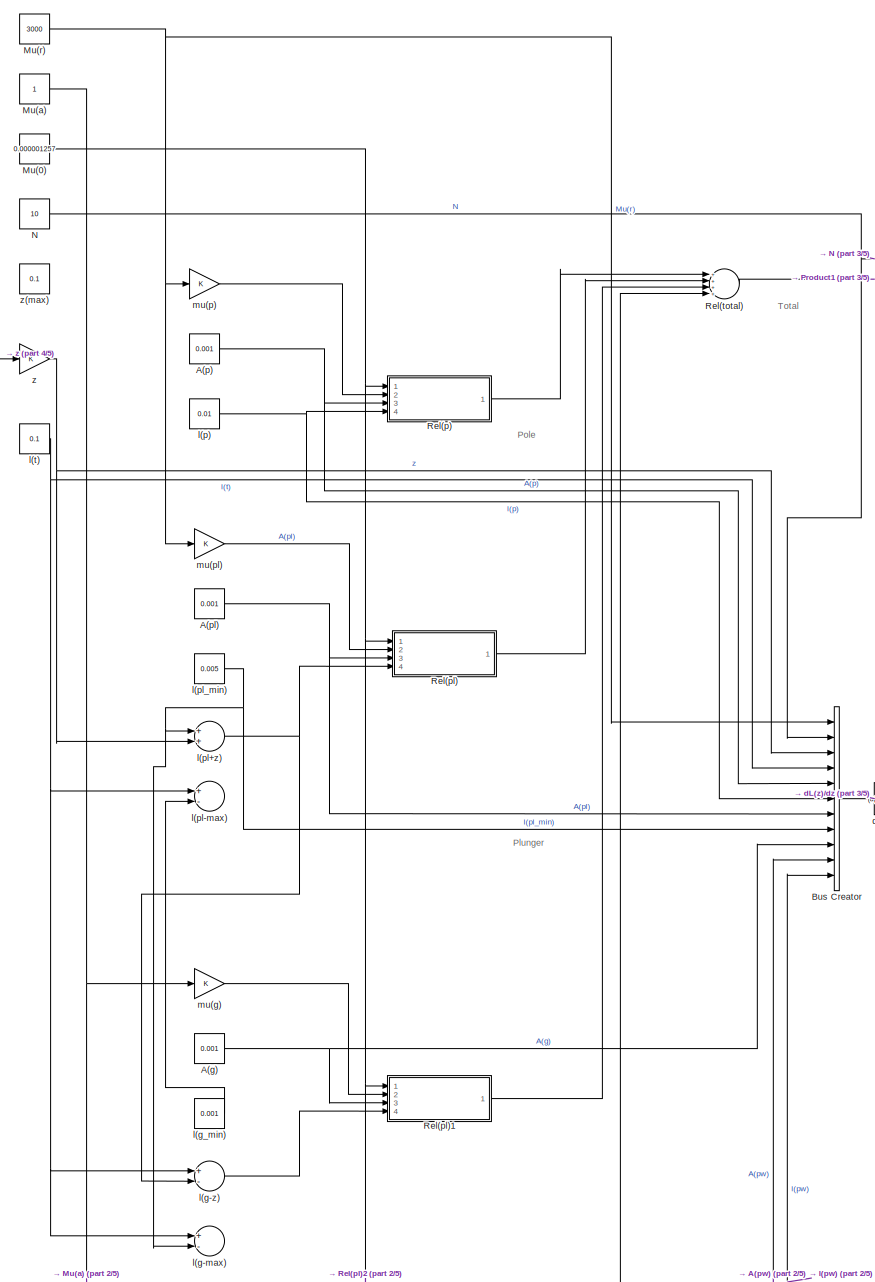
[diagram: root canvas - part 1/5, middle left region]
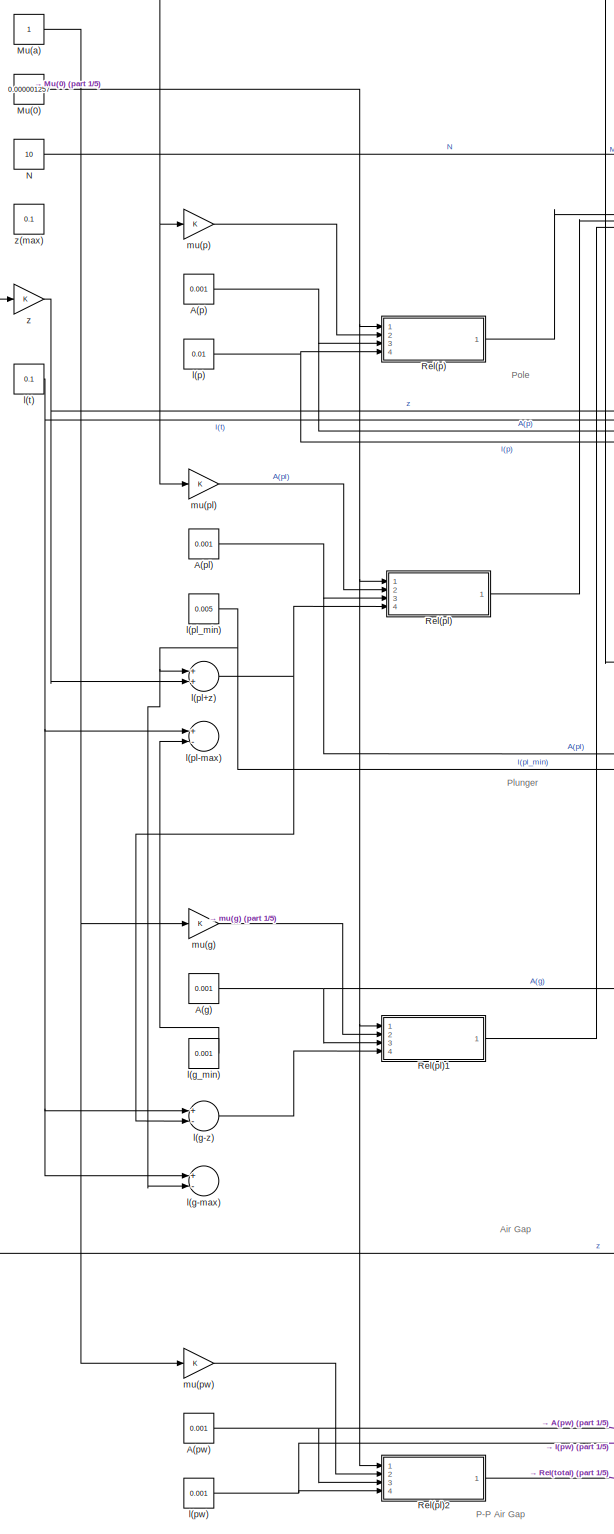
[diagram: root canvas - part 2/5, left side, full height]
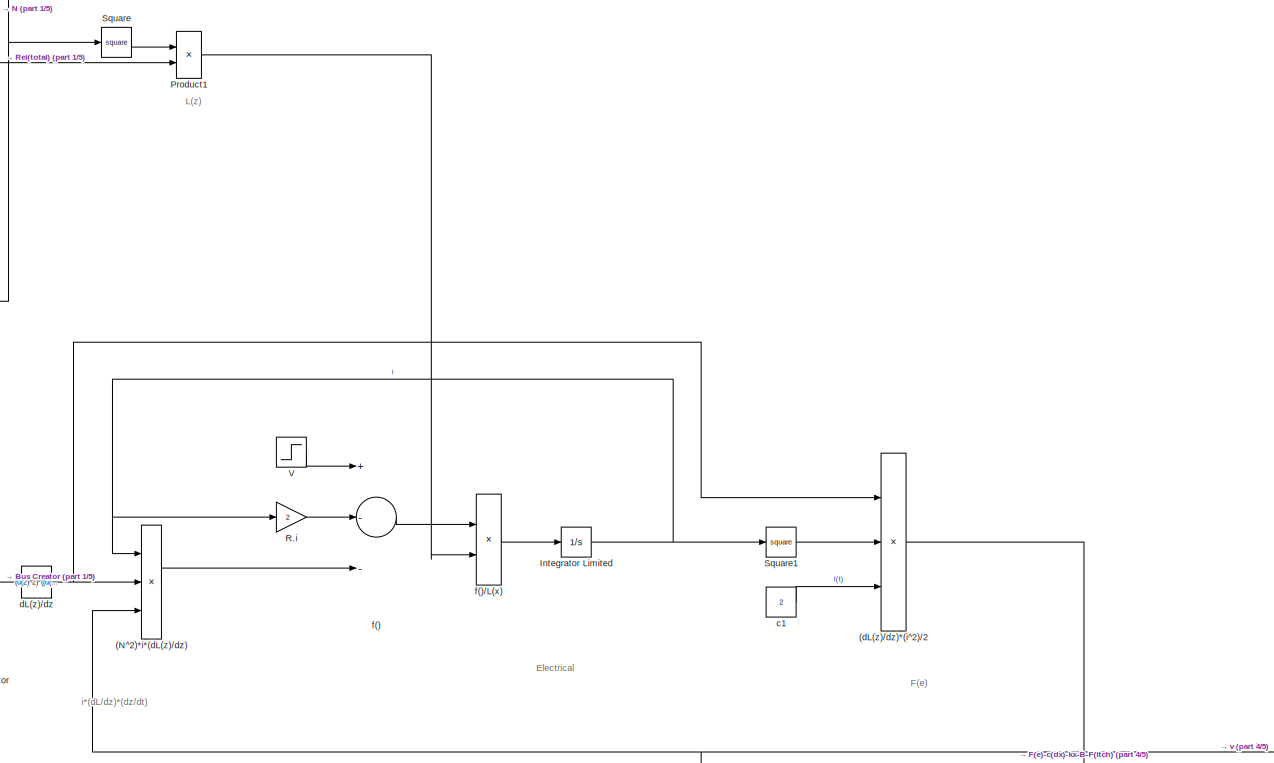
[diagram: root canvas - part 3/5, top center region]
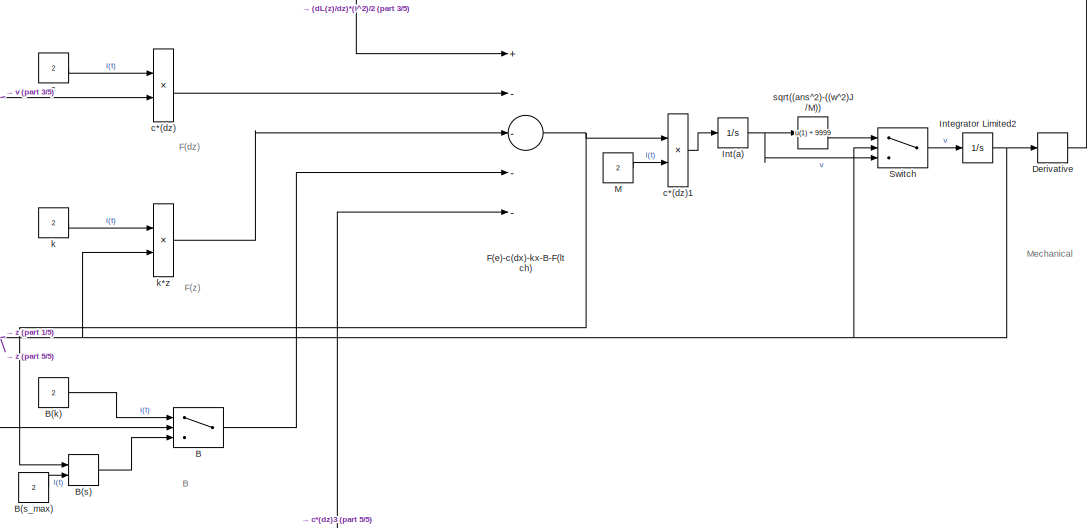
[diagram: root canvas - part 4/5, bottom right region]
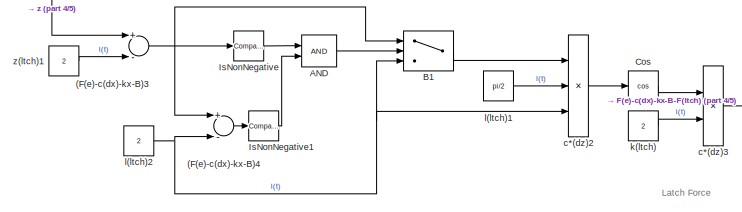
[diagram: root canvas - part 5/5, bottom center region]
MODEL slx_eff86320b346
KIND model
CONFIG AbsTol = auto
CONFIG EnableMultiTasking = off
CONFIG FixedStep = auto
CONFIG MaxStep = auto
CONFIG MinStep = auto
CONFIG RelTol = 1e-3
CONFIG SampleTimeConstraint = Unconstrained
CONFIG Solver = VariableStepAuto
CONFIG SolverName = VariableStepAuto
CONFIG StartTime = 0.0
CONFIG StopTime = 10.0
BLOCK [Sum] (F(e)-c(dx)-kx-B)3
  InputSameDT = off
  Inputs = +-
  OutDataTypeStr = Inherit: Inherit via internal rule
  Ports = [2, 1]
  SaturateOnIntegerOverflow = off
BLOCK [Sum] (F(e)-c(dx)-kx-B)4
  InputSameDT = off
  Inputs = +-
  OutDataTypeStr = Inherit: Inherit via internal rule
  Ports = [2, 1]
  SaturateOnIntegerOverflow = off
BLOCK [Product] (N^2)*i*(dL(z)//dz)
  InputSameDT = off
  Inputs = ***
  OutDataTypeStr = Inherit: Inherit via internal rule
  Ports = [3, 1]
  RndMeth = Floor
  SaturateOnIntegerOverflow = off
BLOCK [Product] (dL(z)//dz)*(i^2)//2
  InputSameDT = off
  Inputs = **/
  OutDataTypeStr = Inherit: Inherit via internal rule
  Ports = [3, 1]
  RndMeth = Floor
  SaturateOnIntegerOverflow = off
BLOCK [Constant] A(g)
  Value = 0.001
BLOCK [Constant] A(p)
  Value = 0.001
BLOCK [Constant] A(pl)
  Value = 0.001
BLOCK [Constant] A(pw)
  Value = 0.001
BLOCK [Logic] AND
  AllPortsSameDT = off
  IconShape = distinctive
  OutDataTypeStr = boolean
  Ports = [2, 1]
BLOCK [Switch] B
  Criteria = u2 ~= 0
  InputSameDT = off
  SaturateOnIntegerOverflow = off
BLOCK [Constant] B(k)
  Value = 2
BLOCK [MinMax] B(s)
  InputSameDT = off
  Inputs = 2
  Ports = [2, 1]
  SaturateOnIntegerOverflow = off
BLOCK [Constant] B(s_max)
  Value = 2
BLOCK [Switch] B1
  Criteria = u2 ~= 0
  InputSameDT = off
  SaturateOnIntegerOverflow = off
BLOCK [BusCreator] Bus Creator
  DisplayOption = bar
  InheritFromInputs = on
  Inputs = 11
  Ports = [11, 1]
BLOCK [Trigonometry] Cos
  Operator = cos
  Ports = [1, 1]
BLOCK [Derivative] Derivative
BLOCK [Sum] F(e)-c(dx)-kx-B-F(ltch)
  InputSameDT = off
  Inputs = +----
  OutDataTypeStr = Inherit: Inherit via internal rule
  Ports = [5, 1]
  SaturateOnIntegerOverflow = off
BLOCK [Integrator] Int(a)
  LimitOutput = on
  LowerSaturationLimit = 0
  Ports = [1, 1]
  UpperSaturationLimit = 1
BLOCK [Integrator] Integrator Limited
  LimitOutput = on
  LowerSaturationLimit = 0
  Ports = [1, 1]
  UpperSaturationLimit = 1
BLOCK [Integrator] Integrator Limited2
  LimitOutput = on
  LowerSaturationLimit = 0
  Ports = [1, 1]
  UpperSaturationLimit = 1
BLOCK [Reference] IsNonNegative  REF=simulink/Logic and Bit
Operations/Compare
To Zero
  Ports = [1, 1]
  SourceBlock = simulink/Logic and Bit\nOperations/Compare\nTo Zero
  SourceType = Compare To Zero
BLOCK [Reference] IsNonNegative1  REF=simulink/Logic and Bit
Operations/Compare
To Zero
  Ports = [1, 1]
  SourceBlock = simulink/Logic and Bit\nOperations/Compare\nTo Zero
  SourceType = Compare To Zero
BLOCK [Constant] M
  Value = 2
BLOCK [Constant] Mu(0)
  Value = 0.000001257
BLOCK [Constant] Mu(a)
BLOCK [Constant] Mu(r)
  Value = 3000
BLOCK [Constant] N
  Value = 10
BLOCK [Product] Product1
  InputSameDT = off
  Inputs = //
  OutDataTypeStr = Inherit: Inherit via internal rule
  Ports = [2, 1]
  RndMeth = Floor
  SaturateOnIntegerOverflow = off
BLOCK [Gain] R.i
  Gain = 2
  OutDataTypeStr = Inherit: Inherit via internal rule
  ParamDataTypeStr = Inherit: Inherit via internal rule
  SaturateOnIntegerOverflow = off
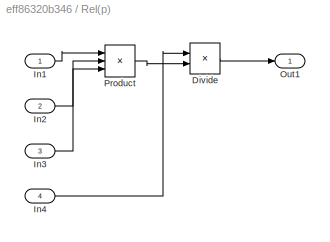
BLOCK [SubSystem] Rel(p)
  Ports = [4, 1]
  RequestExecContextInheritance = off
BLOCK [Product] Rel(p)/Divide
  InputSameDT = off
  OutDataTypeStr = Inherit: Inherit via internal rule
  Ports = [2, 1]
  RndMeth = Floor
  SaturateOnIntegerOverflow = off
BLOCK [Inport] Rel(p)/In1
  IconDisplay = Port number
BLOCK [Inport] Rel(p)/In2
  IconDisplay = Port number
  Port = 2
BLOCK [Inport] Rel(p)/In3
  IconDisplay = Port number
  Port = 3
BLOCK [Inport] Rel(p)/In4
  IconDisplay = Port number
  Port = 4
BLOCK [Outport] Rel(p)/Out1
  IconDisplay = Port number
BLOCK [Product] Rel(p)/Product
  InputSameDT = off
  Inputs = 3
  OutDataTypeStr = Inherit: Inherit via internal rule
  Ports = [3, 1]
  RndMeth = Floor
  SaturateOnIntegerOverflow = off
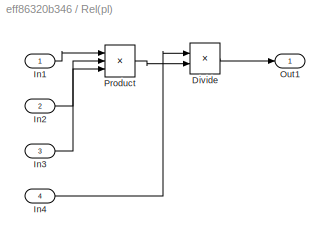
BLOCK [SubSystem] Rel(pl)
  Ports = [4, 1]
  RequestExecContextInheritance = off
BLOCK [Product] Rel(pl)/Divide
  InputSameDT = off
  OutDataTypeStr = Inherit: Inherit via internal rule
  Ports = [2, 1]
  RndMeth = Floor
  SaturateOnIntegerOverflow = off
BLOCK [Inport] Rel(pl)/In1
  IconDisplay = Port number
BLOCK [Inport] Rel(pl)/In2
  IconDisplay = Port number
  Port = 2
BLOCK [Inport] Rel(pl)/In3
  IconDisplay = Port number
  Port = 3
BLOCK [Inport] Rel(pl)/In4
  IconDisplay = Port number
  Port = 4
BLOCK [Outport] Rel(pl)/Out1
  IconDisplay = Port number
BLOCK [Product] Rel(pl)/Product
  InputSameDT = off
  Inputs = 3
  OutDataTypeStr = Inherit: Inherit via internal rule
  Ports = [3, 1]
  RndMeth = Floor
  SaturateOnIntegerOverflow = off
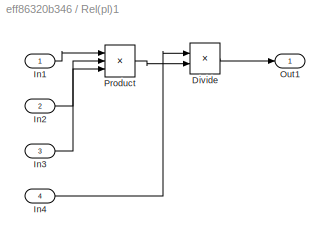
BLOCK [SubSystem] Rel(pl)1
  Ports = [4, 1]
  RequestExecContextInheritance = off
BLOCK [Product] Rel(pl)1/Divide
  InputSameDT = off
  OutDataTypeStr = Inherit: Inherit via internal rule
  Ports = [2, 1]
  RndMeth = Floor
  SaturateOnIntegerOverflow = off
BLOCK [Inport] Rel(pl)1/In1
  IconDisplay = Port number
BLOCK [Inport] Rel(pl)1/In2
  IconDisplay = Port number
  Port = 2
BLOCK [Inport] Rel(pl)1/In3
  IconDisplay = Port number
  Port = 3
BLOCK [Inport] Rel(pl)1/In4
  IconDisplay = Port number
  Port = 4
BLOCK [Outport] Rel(pl)1/Out1
  IconDisplay = Port number
BLOCK [Product] Rel(pl)1/Product
  InputSameDT = off
  Inputs = 3
  OutDataTypeStr = Inherit: Inherit via internal rule
  Ports = [3, 1]
  RndMeth = Floor
  SaturateOnIntegerOverflow = off
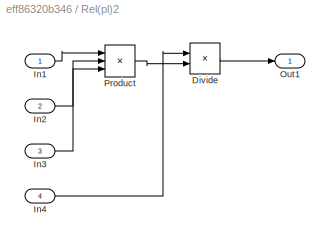
BLOCK [SubSystem] Rel(pl)2
  Ports = [4, 1]
  RequestExecContextInheritance = off
BLOCK [Product] Rel(pl)2/Divide
  InputSameDT = off
  OutDataTypeStr = Inherit: Inherit via internal rule
  Ports = [2, 1]
  RndMeth = Floor
  SaturateOnIntegerOverflow = off
BLOCK [Inport] Rel(pl)2/In1
  IconDisplay = Port number
BLOCK [Inport] Rel(pl)2/In2
  IconDisplay = Port number
  Port = 2
BLOCK [Inport] Rel(pl)2/In3
  IconDisplay = Port number
  Port = 3
BLOCK [Inport] Rel(pl)2/In4
  IconDisplay = Port number
  Port = 4
BLOCK [Outport] Rel(pl)2/Out1
  IconDisplay = Port number
BLOCK [Product] Rel(pl)2/Product
  InputSameDT = off
  Inputs = 3
  OutDataTypeStr = Inherit: Inherit via internal rule
  Ports = [3, 1]
  RndMeth = Floor
  SaturateOnIntegerOverflow = off
BLOCK [Sum] Rel(total)
  InputSameDT = off
  Inputs = ++++
  OutDataTypeStr = Inherit: Inherit via internal rule
  Ports = [4, 1]
  SaturateOnIntegerOverflow = off
BLOCK [Math] Square
  Operator = square
  Ports = [1, 1]
BLOCK [Math] Square1
  Operator = square
  Ports = [1, 1]
BLOCK [Switch] Switch
  InputSameDT = off
  SaturateOnIntegerOverflow = off
BLOCK [Step] V
  After = 10
  SampleTime = 0
  Time = 10
BLOCK [Constant] c
  Value = 2
BLOCK [Product] c*(dz)
  InputSameDT = off
  Inputs = **
  OutDataTypeStr = Inherit: Inherit via internal rule
  Ports = [2, 1]
  RndMeth = Floor
  SaturateOnIntegerOverflow = off
BLOCK [Product] c*(dz)1
  InputSameDT = off
  Inputs = */
  OutDataTypeStr = Inherit: Inherit via internal rule
  Ports = [2, 1]
  RndMeth = Floor
  SaturateOnIntegerOverflow = off
BLOCK [Product] c*(dz)2
  InputSameDT = off
  Inputs = **/
  OutDataTypeStr = Inherit: Inherit via internal rule
  Ports = [3, 1]
  RndMeth = Floor
  SaturateOnIntegerOverflow = off
BLOCK [Product] c*(dz)3
  InputSameDT = off
  Inputs = **
  OutDataTypeStr = Inherit: Inherit via internal rule
  Ports = [2, 1]
  RndMeth = Floor
  SaturateOnIntegerOverflow = off
BLOCK [Constant] c1
  Value = 2
BLOCK [Fcn] dL(z)//dz
  Expr = (u(2)^2)*((u(1)*u(7)*u(9))*(u(1)*u(7)-u(9))/(((u(1)*u(7))*(u(4)-u(8)+(u(9)*u(11)/u(10))-u(3)))+(u(9)*(u(8)+(u(7*u(6)/u(5)))+u(3))))^2)
BLOCK [Sum] f()
  InputSameDT = off
  Inputs = +--
  OutDataTypeStr = Inherit: Inherit via internal rule
  Ports = [3, 1]
  SaturateOnIntegerOverflow = off
BLOCK [Product] f()//L(x)
  InputSameDT = off
  Inputs = */
  OutDataTypeStr = Inherit: Inherit via internal rule
  Ports = [2, 1]
  RndMeth = Floor
  SaturateOnIntegerOverflow = off
BLOCK [Constant] k
  Value = 2
BLOCK [Constant] k(ltch)
  Value = 2
BLOCK [Product] k*z
  InputSameDT = off
  Inputs = **
  OutDataTypeStr = Inherit: Inherit via internal rule
  Ports = [2, 1]
  RndMeth = Floor
  SaturateOnIntegerOverflow = off
BLOCK [Sum] l(g-max)
  InputSameDT = off
  Inputs = +-
  OutDataTypeStr = Inherit: Inherit via internal rule
  Ports = [2, 1]
  SaturateOnIntegerOverflow = off
BLOCK [Sum] l(g-z)
  InputSameDT = off
  Inputs = +-
  OutDataTypeStr = Inherit: Inherit via internal rule
  Ports = [2, 1]
  SaturateOnIntegerOverflow = off
BLOCK [Constant] l(g_min)
  Value = 0.001
BLOCK [Constant] l(ltch)1
  Value = pi/2
BLOCK [Constant] l(ltch)2
  Value = 2
BLOCK [Constant] l(p)
  Value = 0.01
BLOCK [Sum] l(pl+z)
  InputSameDT = off
  OutDataTypeStr = Inherit: Inherit via internal rule
  Ports = [2, 1]
  SaturateOnIntegerOverflow = off
BLOCK [Sum] l(pl-max)
  InputSameDT = off
  Inputs = +-
  OutDataTypeStr = Inherit: Inherit via internal rule
  Ports = [2, 1]
  SaturateOnIntegerOverflow = off
BLOCK [Constant] l(pl_min)
  Value = 0.005
BLOCK [Constant] l(pw)
  Value = 0.001
BLOCK [Constant] l(t)
  Value = 0.1
BLOCK [Gain] mu(g)
  OutDataTypeStr = Inherit: Inherit via internal rule
  ParamDataTypeStr = Inherit: Inherit via internal rule
  SaturateOnIntegerOverflow = off
BLOCK [Gain] mu(p)
  OutDataTypeStr = Inherit: Inherit via internal rule
  ParamDataTypeStr = Inherit: Inherit via internal rule
  SaturateOnIntegerOverflow = off
BLOCK [Gain] mu(pl)
  OutDataTypeStr = Inherit: Inherit via internal rule
  ParamDataTypeStr = Inherit: Inherit via internal rule
  SaturateOnIntegerOverflow = off
BLOCK [Gain] mu(pw)
  OutDataTypeStr = Inherit: Inherit via internal rule
  ParamDataTypeStr = Inherit: Inherit via internal rule
  SaturateOnIntegerOverflow = off
BLOCK [Fcn] sqrt((ans^2)-((w^2)J//M))
  Expr = u(1) + 9999
BLOCK [Gain] z
  OutDataTypeStr = Inherit: Inherit via internal rule
  ParamDataTypeStr = Inherit: Inherit via internal rule
  SaturateOnIntegerOverflow = off
BLOCK [Constant] z(ltch)1
  Value = 2
BLOCK [Constant] z(max)
  Value = 0.1
ANNOTATION (root): Air Gap
ANNOTATION (root): B
ANNOTATION (root): Electrical
ANNOTATION (root): F(dz)
ANNOTATION (root): F(e)
ANNOTATION (root): F(z)
ANNOTATION (root): L(z)
ANNOTATION (root): Latch Force
ANNOTATION (root): Mechanical
ANNOTATION (root): P-P Air Gap
ANNOTATION (root): Plunger
ANNOTATION (root): Pole
ANNOTATION (root): Total
ANNOTATION (root): i*(dL/dz)*(dz/dt)
NET (F(e)-c(dx)-kx-B)3:1 -> (F(e)-c(dx)-kx-B)4:1, B1:1, IsNonNegative:1
LINE (F(e)-c(dx)-kx-B)4:1 -> IsNonNegative1:1
LINE (N^2)*i*(dL(z)//dz):1 -> f():3
LINE (dL(z)//dz)*(i^2)//2:1 -> F(e)-c(dx)-kx-B-F(ltch):1
NET A(g):1 -> Bus Creator:9, Rel(pl)1:3
NET A(p):1 -> Bus Creator:5, Rel(p):3
NET A(pl):1 -> Bus Creator:7, Rel(pl):3
NET A(pw):1 -> Bus Creator:10, Rel(pl)2:3
LINE AND:1 -> B1:2
LINE B(k):1 -> B:1
LINE B(s):1 -> B:3
LINE B(s_max):1 -> B(s):2
LINE B1:1 -> c*(dz)2:1
LINE B:1 -> F(e)-c(dx)-kx-B-F(ltch):4
LINE Bus Creator:1 -> dL(z)//dz:1
LINE Cos:1 -> c*(dz)3:1
NET Derivative:1 -> (N^2)*i*(dL(z)//dz):3, B:2, c*(dz):2
NET F(e)-c(dx)-kx-B-F(ltch):1 -> B(s):1, c*(dz)1:1
NET Int(a):1 -> Switch:3, sqrt((ans^2)-((w^2)J//M)):1
NET Integrator Limited2:1 -> (F(e)-c(dx)-kx-B)3:1, Derivative:1, Switch:2, k*z:2, z:1
NET Integrator Limited:1 -> (N^2)*i*(dL(z)//dz):1, R.i:1, Square1:1
LINE IsNonNegative1:1 -> AND:2
LINE IsNonNegative:1 -> AND:1
LINE M:1 -> c*(dz)1:2
NET Mu(0):1 -> Rel(p):1, Rel(pl)1:1, Rel(pl)2:1, Rel(pl):1
NET Mu(a):1 -> mu(g):1, mu(pw):1
NET Mu(r):1 -> Bus Creator:1, mu(p):1, mu(pl):1
NET N:1 -> Bus Creator:2, Square:1
LINE Product1:1 -> f()//L(x):2
LINE R.i:1 -> f():2
LINE Rel(p)/Divide:1 -> Rel(p)/Out1:1
LINE Rel(p)/In1:1 -> Rel(p)/Product:1
LINE Rel(p)/In2:1 -> Rel(p)/Product:2
LINE Rel(p)/In3:1 -> Rel(p)/Product:3
LINE Rel(p)/In4:1 -> Rel(p)/Divide:1
LINE Rel(p)/Product:1 -> Rel(p)/Divide:2
LINE Rel(p):1 -> Rel(total):1
LINE Rel(pl)/Divide:1 -> Rel(pl)/Out1:1
LINE Rel(pl)/In1:1 -> Rel(pl)/Product:1
LINE Rel(pl)/In2:1 -> Rel(pl)/Product:2
LINE Rel(pl)/In3:1 -> Rel(pl)/Product:3
LINE Rel(pl)/In4:1 -> Rel(pl)/Divide:1
LINE Rel(pl)/Product:1 -> Rel(pl)/Divide:2
LINE Rel(pl)1/Divide:1 -> Rel(pl)1/Out1:1
LINE Rel(pl)1/In1:1 -> Rel(pl)1/Product:1
LINE Rel(pl)1/In2:1 -> Rel(pl)1/Product:2
LINE Rel(pl)1/In3:1 -> Rel(pl)1/Product:3
LINE Rel(pl)1/In4:1 -> Rel(pl)1/Divide:1
LINE Rel(pl)1/Product:1 -> Rel(pl)1/Divide:2
LINE Rel(pl)1:1 -> Rel(total):3
LINE Rel(pl)2/Divide:1 -> Rel(pl)2/Out1:1
LINE Rel(pl)2/In1:1 -> Rel(pl)2/Product:1
LINE Rel(pl)2/In2:1 -> Rel(pl)2/Product:2
LINE Rel(pl)2/In3:1 -> Rel(pl)2/Product:3
LINE Rel(pl)2/In4:1 -> Rel(pl)2/Divide:1
LINE Rel(pl)2/Product:1 -> Rel(pl)2/Divide:2
LINE Rel(pl)2:1 -> Rel(total):4
LINE Rel(pl):1 -> Rel(total):2
LINE Rel(total):1 -> Product1:2
LINE Square1:1 -> (dL(z)//dz)*(i^2)//2:2
LINE Square:1 -> Product1:1
LINE Switch:1 -> Integrator Limited2:1
LINE V:1 -> f():1
LINE c*(dz)1:1 -> Int(a):1
LINE c*(dz)2:1 -> Cos:1
LINE c*(dz)3:1 -> F(e)-c(dx)-kx-B-F(ltch):5
LINE c*(dz):1 -> F(e)-c(dx)-kx-B-F(ltch):2
LINE c1:1 -> (dL(z)//dz)*(i^2)//2:3
LINE c:1 -> c*(dz):1
NET dL(z)//dz:1 -> (N^2)*i*(dL(z)//dz):2, (dL(z)//dz)*(i^2)//2:1
LINE f()//L(x):1 -> Integrator Limited:1
LINE f():1 -> f()//L(x):1
LINE k(ltch):1 -> c*(dz)3:2
LINE k*z:1 -> F(e)-c(dx)-kx-B-F(ltch):3
LINE k:1 -> k*z:1
LINE l(g-z):1 -> Rel(pl)1:4
LINE l(g_min):1 -> l(pl-max):2
LINE l(ltch)1:1 -> c*(dz)2:2
NET l(ltch)2:1 -> (F(e)-c(dx)-kx-B)4:2, B1:3, c*(dz)2:3
NET l(p):1 -> Bus Creator:6, Rel(p):4
NET l(pl+z):1 -> Rel(pl):4, l(g-z):2
NET l(pl_min):1 -> Bus Creator:8, l(g-max):2, l(pl+z):1
NET l(pw):1 -> Bus Creator:11, Rel(pl)2:4
NET l(t):1 -> Bus Creator:4, l(g-max):1, l(g-z):1, l(pl-max):1
LINE mu(g):1 -> Rel(pl)1:2
LINE mu(p):1 -> Rel(p):2
LINE mu(pl):1 -> Rel(pl):2
LINE mu(pw):1 -> Rel(pl)2:2
LINE sqrt((ans^2)-((w^2)J//M)):1 -> Switch:1
LINE z(ltch)1:1 -> (F(e)-c(dx)-kx-B)3:2
NET z:1 -> Bus Creator:3, l(pl+z):2
note: NET lines group one-source signal fan-out (src -> all destinations, sorted); 1:1 wires keep LINE
